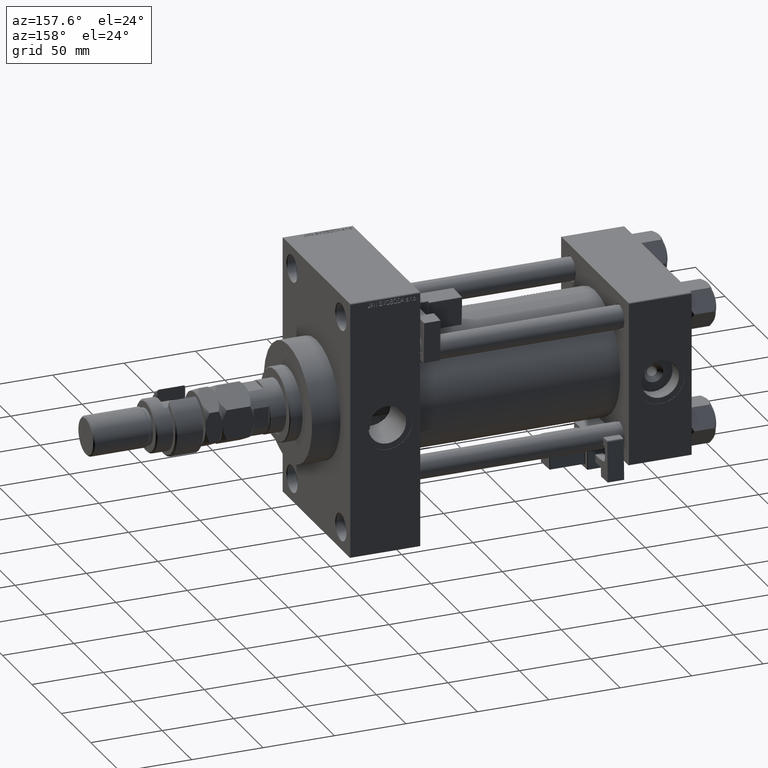
[diagram: clean part render]
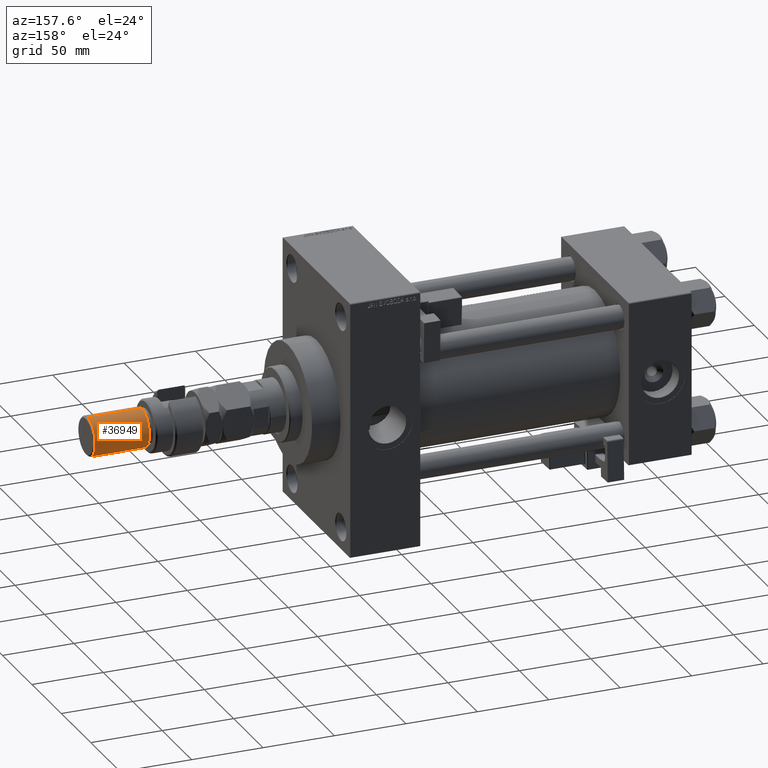
[diagram: same view with one face highlighted and labeled with its STEP entity id]
A machine part, auxiliary view. The second image highlights one B-rep face of the part: STEP entity #36949.
In plain terms, the highlighted cylindrical surface (edge-blend (fillet) strip) has radius 13.5 mm, axis along (-1, -0, 0).
Its self-contained STEP definition (entity closure, byte-faithful):
#1840 = CIRCLE ( 'NONE', #39694, 13.50000000000000000 ) ;
#1910 = VERTEX_POINT ( 'NONE', #45152 ) ;
#7112 = DIRECTION ( 'NONE',  ( -0.000000000000000000, -0.000000000000000000, -1.000000000000000000 ) ) ;
#7153 = AXIS2_PLACEMENT_3D ( 'NONE', #38502, #26120, #50928 ) ;
#9047 = VERTEX_POINT ( 'NONE', #13745 ) ;
#9850 = EDGE_CURVE ( 'NONE', #36324, #9047, #1840, .T. ) ;
#10460 = EDGE_LOOP ( 'NONE', ( #25996, #32862, #51056, #13905 ) ) ;
#10675 = CARTESIAN_POINT ( 'NONE',  ( -13.50000000000000000, 0.000000000000000000, 34.99999999999999289 ) ) ;
#10740 = VECTOR ( 'NONE', #7112, 1000.000000000000000 ) ;
#11924 = AXIS2_PLACEMENT_3D ( 'NONE', #38332, #25135, #41920 ) ;
#12621 = LINE ( 'NONE', #37133, #10740 ) ;
#13745 = CARTESIAN_POINT ( 'NONE',  ( 13.50000000000000000, 1.653273178848926867E-15, 73.00000000000001421 ) ) ;
#13905 = ORIENTED_EDGE ( 'NONE', *, *, #36792, .F. ) ;
#16369 = EDGE_CURVE ( 'NONE', #1910, #53833, #35683, .T. ) ;
#17579 = CYLINDRICAL_SURFACE ( 'NONE', #7153, 13.50000000000000000 ) ;
#17762 = VECTOR ( 'NONE', #28613, 1000.000000000000000 ) ;
#18569 = CARTESIAN_POINT ( 'NONE',  ( 0.000000000000000000, 0.000000000000000000, 73.00000000000001421 ) ) ;
#24483 = LINE ( 'NONE', #25048, #17762 ) ;
#25048 = CARTESIAN_POINT ( 'NONE',  ( 13.50000000000000000, 1.653273178848926867E-15, 74.00000000000001421 ) ) ;
#25135 = DIRECTION ( 'NONE',  ( -0.000000000000000000, -0.000000000000000000, 1.000000000000000000 ) ) ;
#25996 = ORIENTED_EDGE ( 'NONE', *, *, #9850, .T. ) ;
#26120 = DIRECTION ( 'NONE',  ( -0.000000000000000000, -0.000000000000000000, -1.000000000000000000 ) ) ;
#28613 = DIRECTION ( 'NONE',  ( -0.000000000000000000, -0.000000000000000000, -1.000000000000000000 ) ) ;
#30430 = DIRECTION ( 'NONE',  ( 1.000000000000000000, 0.000000000000000000, 0.000000000000000000 ) ) ;
#32862 = ORIENTED_EDGE ( 'NONE', *, *, #37826, .T. ) ;
#34096 = FACE_OUTER_BOUND ( 'NONE', #10460, .T. ) ;
#35627 = DIRECTION ( 'NONE',  ( 0.000000000000000000, 0.000000000000000000, -1.000000000000000000 ) ) ;
#35683 = CIRCLE ( 'NONE', #11924, 13.50000000000000000 ) ;
#36148 = CARTESIAN_POINT ( 'NONE',  ( -13.50000000000000000, 0.000000000000000000, 73.00000000000001421 ) ) ;
#36324 = VERTEX_POINT ( 'NONE', #36148 ) ;
#36792 = EDGE_CURVE ( 'NONE', #36324, #53833, #12621, .T. ) ;
#36949 = ADVANCED_FACE ( 'NONE', ( #34096 ), #17579, .T. ) ;
#37133 = CARTESIAN_POINT ( 'NONE',  ( -13.50000000000000000, 0.000000000000000000, 74.00000000000001421 ) ) ;
#37826 = EDGE_CURVE ( 'NONE', #9047, #1910, #24483, .T. ) ;
#38332 = CARTESIAN_POINT ( 'NONE',  ( 0.000000000000000000, 0.000000000000000000, 34.99999999999999289 ) ) ;
#38502 = CARTESIAN_POINT ( 'NONE',  ( 0.000000000000000000, 0.000000000000000000, 74.00000000000001421 ) ) ;
#39694 = AXIS2_PLACEMENT_3D ( 'NONE', #18569, #35627, #30430 ) ;
#41920 = DIRECTION ( 'NONE',  ( 1.000000000000000000, 0.000000000000000000, 0.000000000000000000 ) ) ;
#45152 = CARTESIAN_POINT ( 'NONE',  ( 13.50000000000000000, 1.653273178848926867E-15, 34.99999999999999289 ) ) ;
#50928 = DIRECTION ( 'NONE',  ( -1.000000000000000000, 0.000000000000000000, 0.000000000000000000 ) ) ;
#51056 = ORIENTED_EDGE ( 'NONE', *, *, #16369, .T. ) ;
#53833 = VERTEX_POINT ( 'NONE', #10675 ) ;